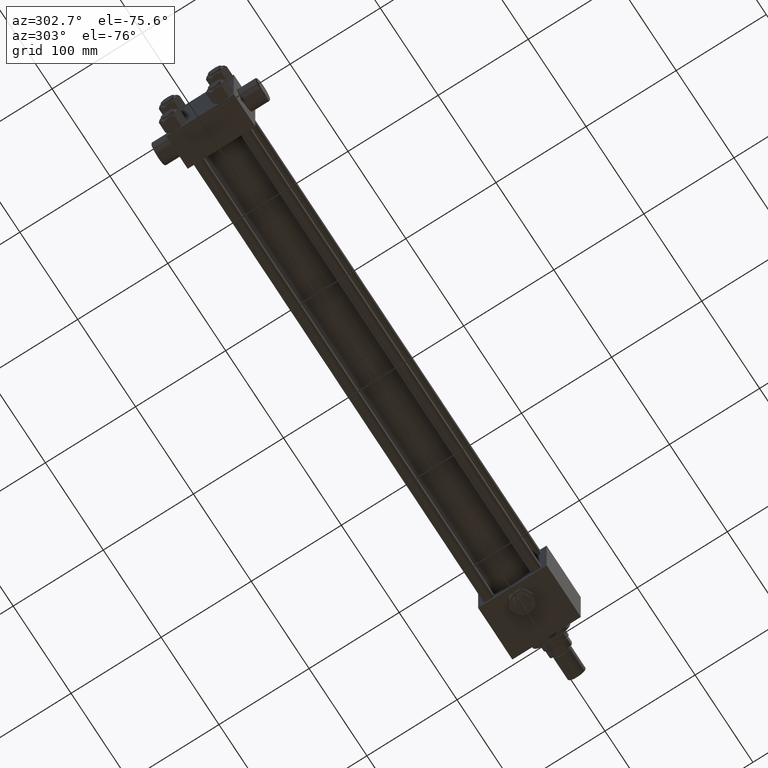
[diagram: clean part render]
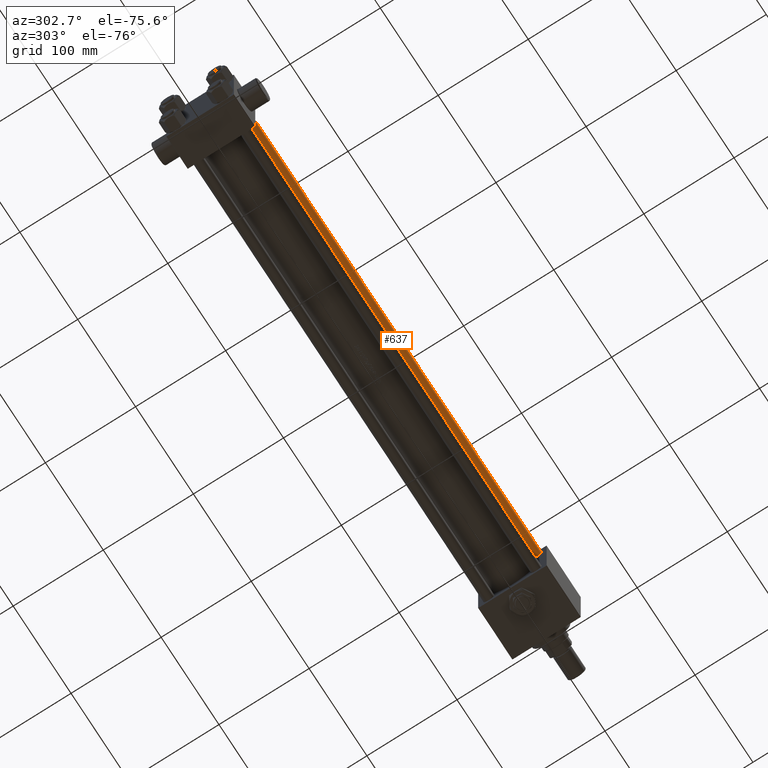
[diagram: same view with one face highlighted and labeled with its STEP entity id]
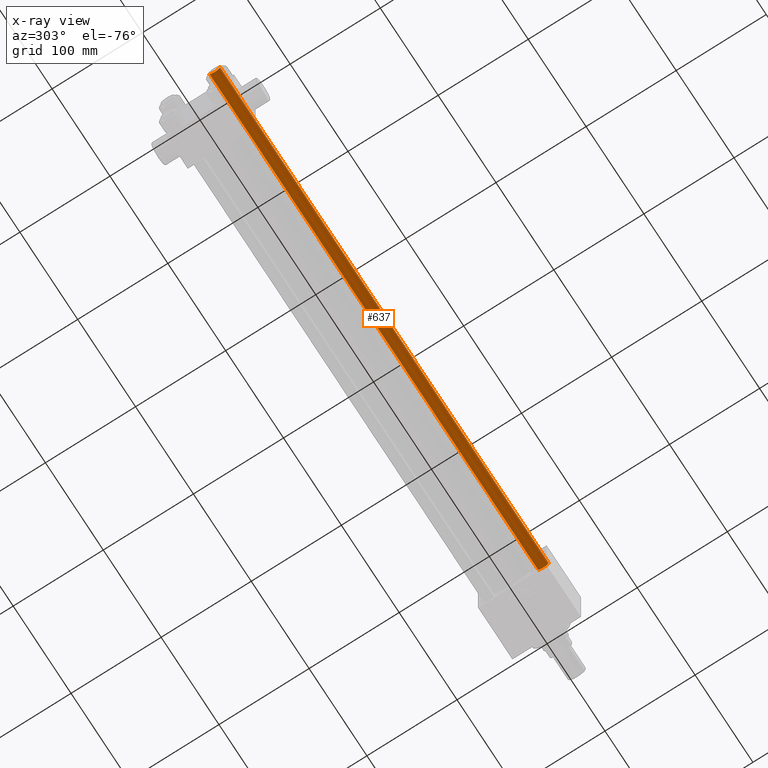
[diagram: x-ray of the same camera — body ghosted, the highlighted face saturated]
A machine part, auxiliary view. The second image highlights one B-rep face of the part: STEP entity #637.
The next image is the same camera in x-ray: the body ghosted, the highlighted face saturated — about 0% of this face is hidden behind the body in this view.
In plain terms, the highlighted cylindrical surface (edge-blend (fillet) strip) has radius 6 mm, axis along (1, -0, -0).
Its self-contained STEP definition (entity closure, byte-faithful):
#637 = ADVANCED_FACE ( 'NONE', ( #5425 ), #24274, .T. ) ;
#3156 = DIRECTION ( 'NONE',  ( -0.000000000000000000, -0.000000000000000000, 1.000000000000000000 ) ) ;
#3948 = CIRCLE ( 'NONE', #45869, 6.000000000000000888 ) ;
#4569 = DIRECTION ( 'NONE',  ( -0.000000000000000000, -0.000000000000000000, -1.000000000000000000 ) ) ;
#5425 = FACE_OUTER_BOUND ( 'NONE', #8506, .T. ) ;
#6389 = VERTEX_POINT ( 'NONE', #21955 ) ;
#6862 = ORIENTED_EDGE ( 'NONE', *, *, #36463, .T. ) ;
#7264 = LINE ( 'NONE', #33995, #38948 ) ;
#8506 = EDGE_LOOP ( 'NONE', ( #16063, #6862, #47676, #39965 ) ) ;
#9925 = CARTESIAN_POINT ( 'NONE',  ( -6.000000000000000888, 0.000000000000000000, 0.5000000000000559552 ) ) ;
#11701 = DIRECTION ( 'NONE',  ( -0.000000000000000000, -0.000000000000000000, -1.000000000000000000 ) ) ;
#12969 = CIRCLE ( 'NONE', #24049, 6.000000000000000888 ) ;
#16063 = ORIENTED_EDGE ( 'NONE', *, *, #46380, .T. ) ;
#16335 = CARTESIAN_POINT ( 'NONE',  ( 0.000000000000000000, 0.000000000000000000, 569.0000000000000000 ) ) ;
#18414 = DIRECTION ( 'NONE',  ( 0.000000000000000000, 0.000000000000000000, -1.000000000000000000 ) ) ;
#18897 = DIRECTION ( 'NONE',  ( 1.000000000000000000, 0.000000000000000000, 0.000000000000000000 ) ) ;
#19147 = CARTESIAN_POINT ( 'NONE',  ( 0.000000000000000000, 0.000000000000000000, 568.5000000000001137 ) ) ;
#21955 = CARTESIAN_POINT ( 'NONE',  ( -6.000000000000000888, 0.000000000000000000, 568.5000000000001137 ) ) ;
#22001 = CARTESIAN_POINT ( 'NONE',  ( 0.000000000000000000, 0.000000000000000000, 0.5000000000000559552 ) ) ;
#22261 = VECTOR ( 'NONE', #4569, 1000.000000000000000 ) ;
#24049 = AXIS2_PLACEMENT_3D ( 'NONE', #19147, #18414, #18897 ) ;
#24274 = CYLINDRICAL_SURFACE ( 'NONE', #40742, 6.000000000000000888 ) ;
#26877 = CARTESIAN_POINT ( 'NONE',  ( 6.000000000000000888, 7.347880794884120722E-16, 569.0000000000000000 ) ) ;
#27247 = DIRECTION ( 'NONE',  ( -0.000000000000000000, -0.000000000000000000, -1.000000000000000000 ) ) ;
#30251 = VERTEX_POINT ( 'NONE', #48231 ) ;
#31444 = DIRECTION ( 'NONE',  ( -1.000000000000000000, 0.000000000000000000, 0.000000000000000000 ) ) ;
#32901 = VERTEX_POINT ( 'NONE', #9925 ) ;
#33120 = EDGE_CURVE ( 'NONE', #30251, #32901, #3948, .T. ) ;
#33995 = CARTESIAN_POINT ( 'NONE',  ( -6.000000000000000888, 0.000000000000000000, 569.0000000000000000 ) ) ;
#36463 = EDGE_CURVE ( 'NONE', #37495, #30251, #42220, .T. ) ;
#37495 = VERTEX_POINT ( 'NONE', #43402 ) ;
#37566 = DIRECTION ( 'NONE',  ( 1.000000000000000000, 0.000000000000000000, 0.000000000000000000 ) ) ;
#38948 = VECTOR ( 'NONE', #11701, 1000.000000000000000 ) ;
#39965 = ORIENTED_EDGE ( 'NONE', *, *, #43302, .F. ) ;
#40742 = AXIS2_PLACEMENT_3D ( 'NONE', #16335, #27247, #31444 ) ;
#42220 = LINE ( 'NONE', #26877, #22261 ) ;
#43302 = EDGE_CURVE ( 'NONE', #6389, #32901, #7264, .T. ) ;
#43402 = CARTESIAN_POINT ( 'NONE',  ( 6.000000000000000888, 7.347880794884120722E-16, 568.5000000000001137 ) ) ;
#45869 = AXIS2_PLACEMENT_3D ( 'NONE', #22001, #3156, #37566 ) ;
#46380 = EDGE_CURVE ( 'NONE', #6389, #37495, #12969, .T. ) ;
#47676 = ORIENTED_EDGE ( 'NONE', *, *, #33120, .T. ) ;
#48231 = CARTESIAN_POINT ( 'NONE',  ( 6.000000000000000888, 7.347880794884120722E-16, 0.5000000000000559552 ) ) ;